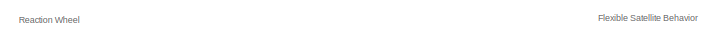
[diagram: root canvas - part 1/3, top left region]
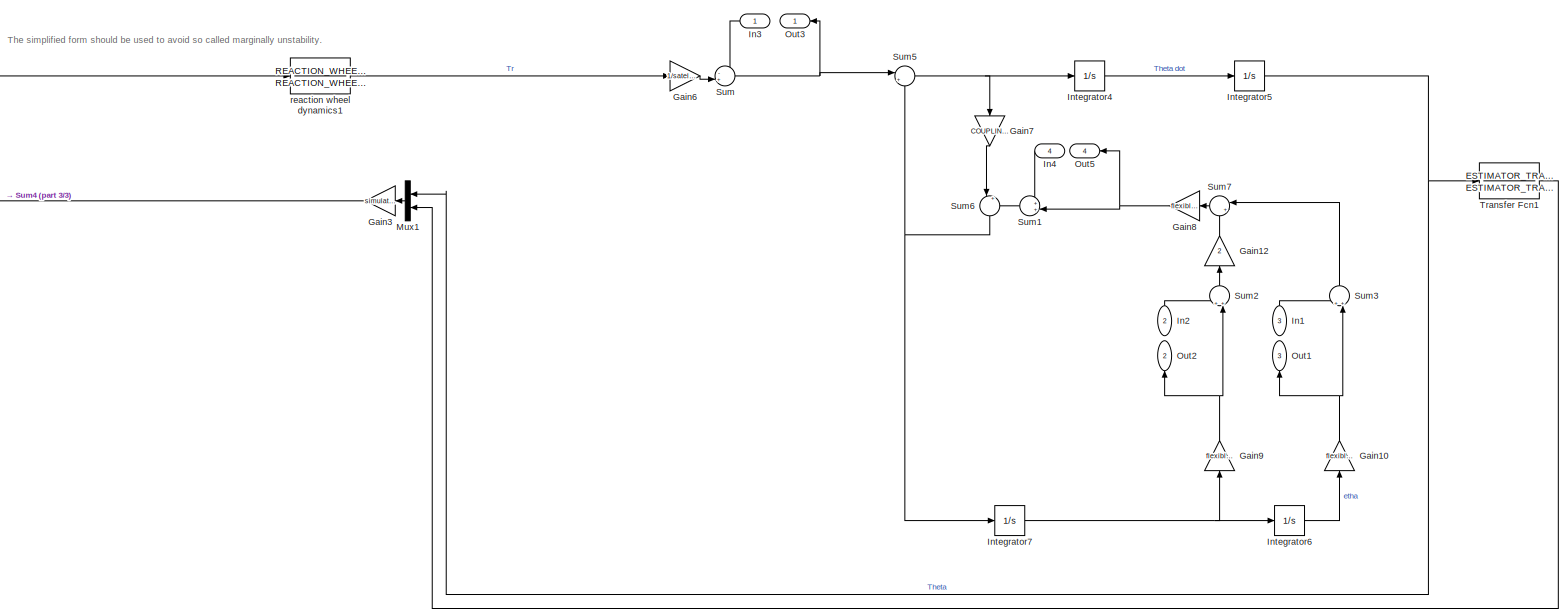
[diagram: root canvas - part 2/3, most of the canvas]
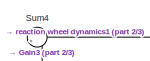
[diagram: root canvas - part 3/3, top left region]
MODEL slx_8a14640cc13b
KIND model
CONFIG AbsTol = auto
CONFIG EnableMultiTasking = off
CONFIG FixedStep = auto
CONFIG MaxStep = auto
CONFIG MinStep = auto
CONFIG RelTol = 1e-3
CONFIG SampleTimeConstraint = Unconstrained
CONFIG SolverName = VariableStepAuto
CONFIG StartTime = 0.0
CONFIG StopTime = 200
BLOCK [Gain] Gain10
  Gain = flexibleModeFrequencyNominalValue
  NameLocation = right
BLOCK [Gain] Gain12
  Gain = 2
  NameLocation = right
BLOCK [Gain] Gain3
  Gain = simulationModalGainMatrixStateFeedback
  Multiplication = Matrix(K*u)
  NameLocation = top
BLOCK [Gain] Gain6
  Gain = 1/satelliteInertiaNominalValue
BLOCK [Gain] Gain7
  Gain = COUPLING_COEFFICIENT
  NameLocation = left
BLOCK [Gain] Gain8
  Gain = flexibleModeFrequencyNominalValue
  NameLocation = top
BLOCK [Gain] Gain9
  Gain = flexibleModeDampingRatioNominalValue
  NameLocation = right
BLOCK [Inport] In1
  NameLocation = right
  Port = 3
BLOCK [Inport] In2
  NameLocation = right
  Port = 2
BLOCK [Inport] In3
  NameLocation = top
BLOCK [Inport] In4
  NameLocation = top
  Port = 4
BLOCK [Integrator] Integrator4
  Ports = [1, 1]
BLOCK [Integrator] Integrator5
  Ports = [1, 1]
BLOCK [Integrator] Integrator6
  InitialCondition = INITIAL_CONDITION_ON_STATE
  Ports = [1, 1]
BLOCK [Integrator] Integrator7
  Ports = [1, 1]
BLOCK [Mux] Mux1
  DisplayOption = bar
  Inputs = 2
  NameLocation = top
  Ports = [2, 1]
BLOCK [Outport] Out1
  NameLocation = right
  Port = 3
BLOCK [Outport] Out2
  NameLocation = right
  Port = 2
BLOCK [Outport] Out3
  NameLocation = top
BLOCK [Outport] Out5
  NameLocation = top
  Port = 4
BLOCK [Sum] Sum
  Inputs = -+|
  Ports = [2, 1]
BLOCK [Sum] Sum1
  Inputs = ++|
  NameLocation = top
  Ports = [2, 1]
BLOCK [Sum] Sum2
  Inputs = ++|
  NameLocation = right
  Ports = [2, 1]
BLOCK [Sum] Sum3
  Inputs = ++|
  NameLocation = right
  Ports = [2, 1]
BLOCK [Sum] Sum4
  Inputs = |+-
  Ports = [2, 1]
BLOCK [Sum] Sum5
  Inputs = |++
  Ports = [2, 1]
BLOCK [Sum] Sum6
  Inputs = |+-
  NameLocation = left
  Ports = [2, 1]
BLOCK [Sum] Sum7
  Inputs = |++
  NameLocation = top
  Ports = [2, 1]
BLOCK [TransferFcn] Transfer Fcn1
  Denominator = ESTIMATOR_TRANSFER_FUNCTION_DENOMINATOR
  Numerator = ESTIMATOR_TRANSFER_FUNCTION_NUMERATOR
BLOCK [TransferFcn] reaction wheel dynamics1
  Denominator = REACTION_WHEEL_REDUCED_FORM.TRANSFER_FUNCTION.Denominator{1}
  Numerator = REACTION_WHEEL_REDUCED_FORM.TRANSFER_FUNCTION.Numerator{1}
ANNOTATION (root): Flexible Satellite Behavior
ANNOTATION (root): Reaction Wheel
ANNOTATION (root): The simplified form should be used to avoid so called marginally unstability.
NET Gain10:1 -> Out1:1, Sum3:2
LINE Gain12:1 -> Sum7:2
LINE Gain3:1 -> Sum4:2
LINE Gain6:1 -> Sum:2
LINE Gain7:1 -> Sum6:1
NET Gain8:1 -> Out5:1, Sum1:2
NET Gain9:1 -> Out2:1, Sum2:2
LINE In1:1 -> Sum3:1
LINE In2:1 -> Sum2:1
LINE In3:1 -> Sum:1
LINE In4:1 -> Sum1:1
LINE Integrator4:1 -> Integrator5:1
NET Integrator5:1 -> Mux1:1, Transfer Fcn1:1
LINE Integrator6:1 -> Gain10:1
NET Integrator7:1 -> Gain9:1, Integrator6:1
LINE Mux1:1 -> Gain3:1
LINE Sum1:1 -> Sum6:2
LINE Sum2:1 -> Gain12:1
LINE Sum3:1 -> Sum7:1
LINE Sum4:1 -> reaction wheel dynamics1:1
NET Sum5:1 -> Gain7:1, Integrator4:1
NET Sum6:1 -> Integrator7:1, Sum5:2
LINE Sum7:1 -> Gain8:1
NET Sum:1 -> Out3:1, Sum5:1
LINE Transfer Fcn1:1 -> Mux1:2
LINE reaction wheel dynamics1:1 -> Gain6:1
note: NET lines group one-source signal fan-out (src -> all destinations, sorted); 1:1 wires keep LINE
